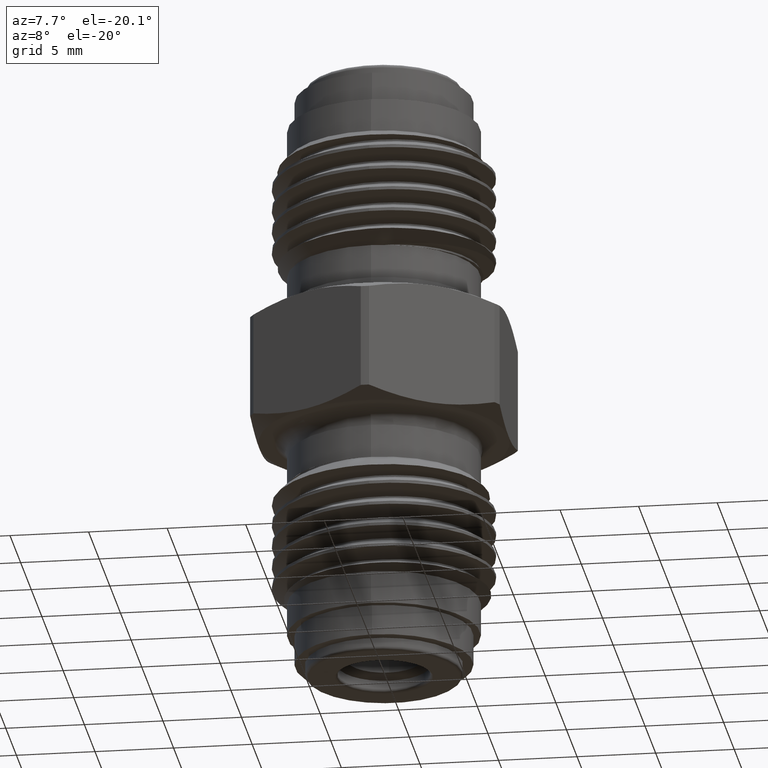
[diagram: clean part render]
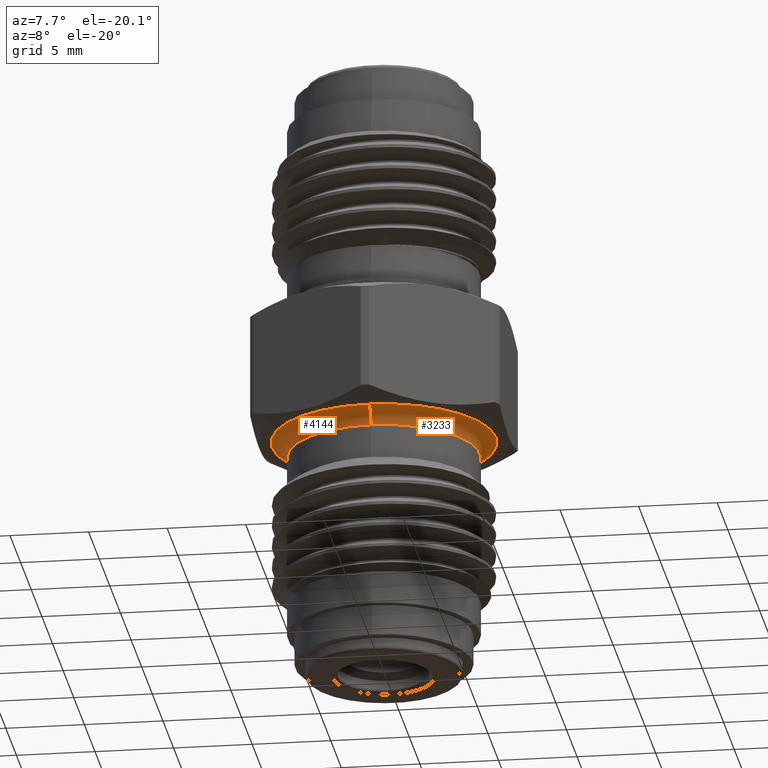
[diagram: same view with one multi-face feature highlighted, each face labeled with its STEP entity id]
A machine part, auxiliary view. The highlighted faces form ONE feature: a constant-radius fillet chain: 2 tangent blend faces with common blend radius 1.016 mm. The faces share edges in the B-rep.
Their STEP definitions:
[1] entity #4144 (Torus):
#330 = CIRCLE ( 'NONE', #5266, 0.2807499999999999440 ) ;
#1534 = VERTEX_POINT ( 'NONE', #5032 ) ;
#1676 = DIRECTION ( 'NONE',  ( -1.000000000000000000, 1.863903451155396625E-32, -6.123233995736775897E-17 ) ) ;
#1719 = CARTESIAN_POINT ( 'NONE',  ( -3.551475717527329379E-17, -0.2807500000000001661, 0.5799999999999999600 ) ) ;
#1781 = AXIS2_PLACEMENT_3D ( 'NONE', #1719, #1676, #10114 ) ;
#1921 = CARTESIAN_POINT ( 'NONE',  ( -3.551475717527329379E-17, -1.707404996040164512E-16, 0.5800000000000000711 ) ) ;
#1969 = EDGE_CURVE ( 'NONE', #1534, #4904, #7917, .T. ) ;
#2921 = AXIS2_PLACEMENT_3D ( 'NONE', #1921, #11427, #8261 ) ;
#2967 = CARTESIAN_POINT ( 'NONE',  ( -3.551475717527328763E-17, -0.2407500000000001583, 0.5799999999999998490 ) ) ;
#4144 = ADVANCED_FACE ( 'NONE', ( #10922 ), #10258, .F. ) ;
#4172 = CARTESIAN_POINT ( 'NONE',  ( -3.796405077356800094E-17, -1.883355586433717230E-16, 0.6199999999999999956 ) ) ;
#4542 = ORIENTED_EDGE ( 'NONE', *, *, #13113, .F. ) ;
#4904 = VERTEX_POINT ( 'NONE', #2967 ) ;
#5032 = CARTESIAN_POINT ( 'NONE',  ( -4.806738686653418487E-18, 0.2407499999999998253, 0.5800000000000000711 ) ) ;
#5266 = AXIS2_PLACEMENT_3D ( 'NONE', #4172, #11741, #13627 ) ;
#5636 = VERTEX_POINT ( 'NONE', #10628 ) ;
#6887 = CIRCLE ( 'NONE', #1781, 0.03999999999999998002 ) ;
#7019 = CIRCLE ( 'NONE', #13249, 0.04000000000000004940 ) ;
#7313 = EDGE_LOOP ( 'NONE', ( #4542, #12080, #7397, #12892 ) ) ;
#7397 = ORIENTED_EDGE ( 'NONE', *, *, #1969, .T. ) ;
#7917 = CIRCLE ( 'NONE', #12978, 0.2407499999999999918 ) ;
#8017 = DIRECTION ( 'NONE',  ( 1.224646799147352468E-16, 1.000000000000000000, 0.000000000000000000 ) ) ;
#8049 = EDGE_CURVE ( 'NONE', #5636, #4904, #6887, .T. ) ;
#8073 = CARTESIAN_POINT ( 'NONE',  ( -3.551475717527328763E-17, -1.761596172865454377E-16, 0.5799999999999999600 ) ) ;
#8261 = DIRECTION ( 'NONE',  ( 5.601041911405624985E-33, -1.000000000000000000, -3.043985339206562950E-16 ) ) ;
#9075 = CARTESIAN_POINT ( 'NONE',  ( -3.582091887506069533E-18, 0.2807499999999997775, 0.6200000000000001066 ) ) ;
#9141 = DIRECTION ( 'NONE',  ( -6.123233995736775897E-17, -3.043985339206562950E-16, 1.000000000000000000 ) ) ;
#9228 = EDGE_CURVE ( 'NONE', #11970, #1534, #7019, .T. ) ;
#10114 = DIRECTION ( 'NONE',  ( -6.123233995736774664E-17, 0.000000000000000000, 1.000000000000000000 ) ) ;
#10180 = DIRECTION ( 'NONE',  ( 0.000000000000000000, -1.000000000000000000, -2.836809962268186072E-16 ) ) ;
#10258 = TOROIDAL_SURFACE ( 'NONE', #2921, 0.2807499999999999440, 0.04000000000000001471 ) ;
#10628 = CARTESIAN_POINT ( 'NONE',  ( -3.796405077356799478E-17, -0.2807500000000001661, 0.6199999999999999956 ) ) ;
#10922 = FACE_OUTER_BOUND ( 'NONE', #7313, .T. ) ;
#11427 = DIRECTION ( 'NONE',  ( -6.123233995736775897E-17, -3.043985339206562950E-16, 1.000000000000000000 ) ) ;
#11741 = DIRECTION ( 'NONE',  ( -6.123233995736775897E-17, -3.043985339206562950E-16, 1.000000000000000000 ) ) ;
#11970 = VERTEX_POINT ( 'NONE', #9075 ) ;
#12080 = ORIENTED_EDGE ( 'NONE', *, *, #9228, .T. ) ;
#12229 = CARTESIAN_POINT ( 'NONE',  ( -1.132798289211355445E-18, 0.2807499999999997775, 0.5800000000000000711 ) ) ;
#12892 = ORIENTED_EDGE ( 'NONE', *, *, #8049, .F. ) ;
#12978 = AXIS2_PLACEMENT_3D ( 'NONE', #8073, #9141, #10180 ) ;
#13113 = EDGE_CURVE ( 'NONE', #11970, #5636, #330, .T. ) ;
#13219 = DIRECTION ( 'NONE',  ( 1.000000000000000000, -1.224646799147353454E-16, 6.123233995736772199E-17 ) ) ;
#13249 = AXIS2_PLACEMENT_3D ( 'NONE', #12229, #13219, #8017 ) ;
#13627 = DIRECTION ( 'NONE',  ( 0.000000000000000000, -1.000000000000000000, -4.865268020773399856E-16 ) ) ;
[2] entity #3233 (Torus):
#385 = EDGE_CURVE ( 'NONE', #4904, #1534, #5099, .T. ) ;
#1409 = DIRECTION ( 'NONE',  ( 0.000000000000000000, -1.000000000000000000, -2.836809962268186072E-16 ) ) ;
#1534 = VERTEX_POINT ( 'NONE', #5032 ) ;
#1676 = DIRECTION ( 'NONE',  ( -1.000000000000000000, 1.863903451155396625E-32, -6.123233995736775897E-17 ) ) ;
#1719 = CARTESIAN_POINT ( 'NONE',  ( -3.551475717527329379E-17, -0.2807500000000001661, 0.5799999999999999600 ) ) ;
#1781 = AXIS2_PLACEMENT_3D ( 'NONE', #1719, #1676, #10114 ) ;
#2064 = AXIS2_PLACEMENT_3D ( 'NONE', #10279, #4002, #2979 ) ;
#2589 = DIRECTION ( 'NONE',  ( -6.123233995736775897E-17, -3.043985339206562950E-16, 1.000000000000000000 ) ) ;
#2736 = AXIS2_PLACEMENT_3D ( 'NONE', #5786, #2589, #1409 ) ;
#2967 = CARTESIAN_POINT ( 'NONE',  ( -3.551475717527328763E-17, -0.2407500000000001583, 0.5799999999999998490 ) ) ;
#2979 = DIRECTION ( 'NONE',  ( 0.000000000000000000, -1.000000000000000000, -4.865268020773399856E-16 ) ) ;
#3233 = ADVANCED_FACE ( 'NONE', ( #9454 ), #9634, .F. ) ;
#4002 = DIRECTION ( 'NONE',  ( -6.123233995736775897E-17, -3.043985339206562950E-16, 1.000000000000000000 ) ) ;
#4171 = ORIENTED_EDGE ( 'NONE', *, *, #385, .T. ) ;
#4503 = CARTESIAN_POINT ( 'NONE',  ( -3.551475717527329379E-17, -1.707404996040164512E-16, 0.5800000000000000711 ) ) ;
#4904 = VERTEX_POINT ( 'NONE', #2967 ) ;
#5032 = CARTESIAN_POINT ( 'NONE',  ( -4.806738686653418487E-18, 0.2407499999999998253, 0.5800000000000000711 ) ) ;
#5099 = CIRCLE ( 'NONE', #2736, 0.2407499999999999918 ) ;
#5636 = VERTEX_POINT ( 'NONE', #10628 ) ;
#5786 = CARTESIAN_POINT ( 'NONE',  ( -3.551475717527328763E-17, -1.761596172865454377E-16, 0.5799999999999999600 ) ) ;
#5911 = EDGE_CURVE ( 'NONE', #5636, #11970, #6605, .T. ) ;
#6111 = EDGE_LOOP ( 'NONE', ( #12942, #7685, #10045, #4171 ) ) ;
#6605 = CIRCLE ( 'NONE', #2064, 0.2807499999999999440 ) ;
#6887 = CIRCLE ( 'NONE', #1781, 0.03999999999999998002 ) ;
#7019 = CIRCLE ( 'NONE', #13249, 0.04000000000000004940 ) ;
#7685 = ORIENTED_EDGE ( 'NONE', *, *, #5911, .F. ) ;
#8017 = DIRECTION ( 'NONE',  ( 1.224646799147352468E-16, 1.000000000000000000, 0.000000000000000000 ) ) ;
#8049 = EDGE_CURVE ( 'NONE', #5636, #4904, #6887, .T. ) ;
#8421 = AXIS2_PLACEMENT_3D ( 'NONE', #4503, #11869, #12044 ) ;
#9075 = CARTESIAN_POINT ( 'NONE',  ( -3.582091887506069533E-18, 0.2807499999999997775, 0.6200000000000001066 ) ) ;
#9228 = EDGE_CURVE ( 'NONE', #11970, #1534, #7019, .T. ) ;
#9454 = FACE_OUTER_BOUND ( 'NONE', #6111, .T. ) ;
#9634 = TOROIDAL_SURFACE ( 'NONE', #8421, 0.2807499999999999440, 0.04000000000000001471 ) ;
#10045 = ORIENTED_EDGE ( 'NONE', *, *, #8049, .T. ) ;
#10114 = DIRECTION ( 'NONE',  ( -6.123233995736774664E-17, 0.000000000000000000, 1.000000000000000000 ) ) ;
#10279 = CARTESIAN_POINT ( 'NONE',  ( -3.796405077356800094E-17, -1.883355586433717230E-16, 0.6199999999999999956 ) ) ;
#10628 = CARTESIAN_POINT ( 'NONE',  ( -3.796405077356799478E-17, -0.2807500000000001661, 0.6199999999999999956 ) ) ;
#11869 = DIRECTION ( 'NONE',  ( -6.123233995736775897E-17, -3.043985339206562950E-16, 1.000000000000000000 ) ) ;
#11970 = VERTEX_POINT ( 'NONE', #9075 ) ;
#12044 = DIRECTION ( 'NONE',  ( 5.601041911405624985E-33, -1.000000000000000000, -3.043985339206562950E-16 ) ) ;
#12229 = CARTESIAN_POINT ( 'NONE',  ( -1.132798289211355445E-18, 0.2807499999999997775, 0.5800000000000000711 ) ) ;
#12942 = ORIENTED_EDGE ( 'NONE', *, *, #9228, .F. ) ;
#13219 = DIRECTION ( 'NONE',  ( 1.000000000000000000, -1.224646799147353454E-16, 6.123233995736772199E-17 ) ) ;
#13249 = AXIS2_PLACEMENT_3D ( 'NONE', #12229, #13219, #8017 ) ;